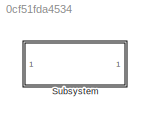
MODEL slx_0cf51fda4534
KIND model
CONFIG AbsTol = auto
CONFIG EnableMultiTasking = off
CONFIG FixedStep = auto
CONFIG MaxStep = auto
CONFIG MinStep = auto
CONFIG RelTol = 1e-3
CONFIG SampleTimeConstraint = Unconstrained
CONFIG SolverName = VariableStepAuto
CONFIG StartTime = 0.0
CONFIG StopTime = 10.0
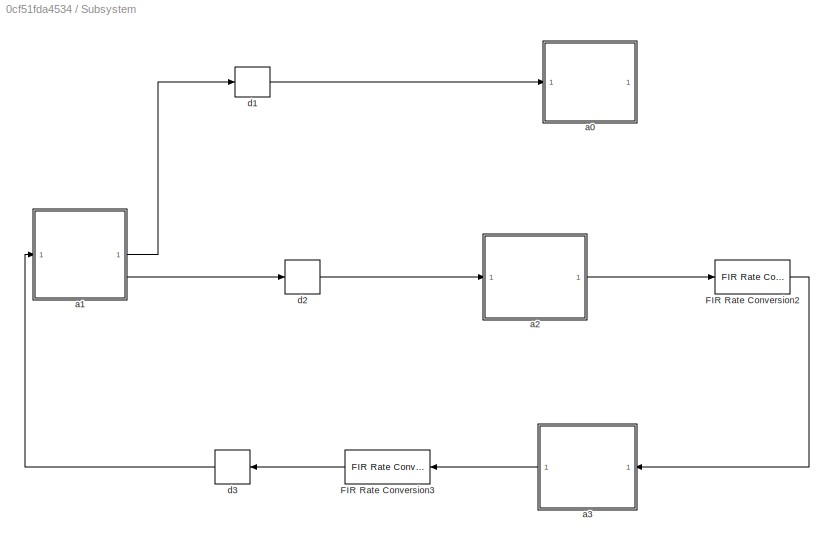
BLOCK [SubSystem] Subsystem
BLOCK [Reference] Subsystem/FIR Rate Conversion2  REF=dspmlti4/FIR Rate
Conversion
  SourceBlock = dspmlti4/FIR Rate\nConversion
  SourceType = FIR Rate Conversion
BLOCK [Reference] Subsystem/FIR Rate Conversion3  REF=dspmlti4/FIR Rate
Conversion
  SourceBlock = dspmlti4/FIR Rate\nConversion
  SourceType = FIR Rate Conversion
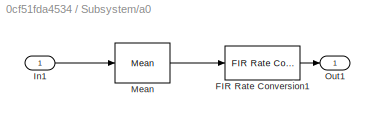
BLOCK [SubSystem] Subsystem/a0
BLOCK [Reference] Subsystem/a0/FIR Rate Conversion1  REF=dspmlti4/FIR Rate
Conversion
  SourceBlock = dspmlti4/FIR Rate\nConversion
  SourceType = FIR Rate Conversion
BLOCK [Inport] Subsystem/a0/In1
BLOCK [Reference] Subsystem/a0/Mean  REF=dspstat3/Mean
  SourceBlock = dspstat3/Mean
  SourceType = Mean
  UserDataPersistent = on
BLOCK [Outport] Subsystem/a0/Out1
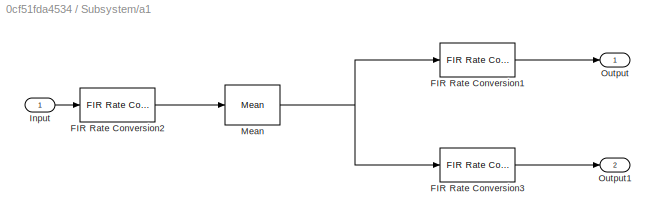
BLOCK [SubSystem] Subsystem/a1
BLOCK [Reference] Subsystem/a1/FIR Rate Conversion1  REF=dspmlti4/FIR Rate
Conversion
  SourceBlock = dspmlti4/FIR Rate\nConversion
  SourceType = FIR Rate Conversion
BLOCK [Reference] Subsystem/a1/FIR Rate Conversion2  REF=dspmlti4/FIR Rate
Conversion
  SourceBlock = dspmlti4/FIR Rate\nConversion
  SourceType = FIR Rate Conversion
BLOCK [Reference] Subsystem/a1/FIR Rate Conversion3  REF=dspmlti4/FIR Rate
Conversion
  SourceBlock = dspmlti4/FIR Rate\nConversion
  SourceType = FIR Rate Conversion
BLOCK [Inport] Subsystem/a1/Input
BLOCK [Reference] Subsystem/a1/Mean  REF=dspstat3/Mean
  SourceBlock = dspstat3/Mean
  SourceType = Mean
  UserDataPersistent = on
BLOCK [Outport] Subsystem/a1/Output
BLOCK [Outport] Subsystem/a1/Output1
  Port = 2
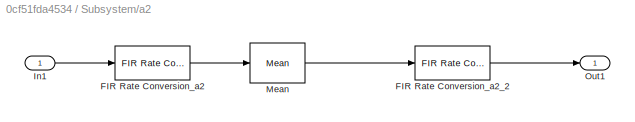
BLOCK [SubSystem] Subsystem/a2
BLOCK [Reference] Subsystem/a2/FIR Rate Conversion_a2  REF=dspmlti4/FIR Rate
Conversion
  SourceBlock = dspmlti4/FIR Rate\nConversion
  SourceType = FIR Rate Conversion
BLOCK [Reference] Subsystem/a2/FIR Rate Conversion_a2_2  REF=dspmlti4/FIR Rate
Conversion
  SourceBlock = dspmlti4/FIR Rate\nConversion
  SourceType = FIR Rate Conversion
BLOCK [Inport] Subsystem/a2/In1
BLOCK [Reference] Subsystem/a2/Mean  REF=dspstat3/Mean
  SourceBlock = dspstat3/Mean
  SourceType = Mean
  UserDataPersistent = on
BLOCK [Outport] Subsystem/a2/Out1
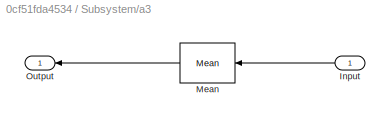
BLOCK [SubSystem] Subsystem/a3
BLOCK [Inport] Subsystem/a3/Input
BLOCK [Reference] Subsystem/a3/Mean  REF=dspstat3/Mean
  SourceBlock = dspstat3/Mean
  SourceType = Mean
  UserDataPersistent = on
BLOCK [Outport] Subsystem/a3/Output
BLOCK [Delay] Subsystem/d1
  DelayLength = 4
  InputPortMap = u0
BLOCK [Delay] Subsystem/d2
  InputPortMap = u0
BLOCK [Delay] Subsystem/d3
  DelayLength = 4
  InputPortMap = u0
LINE Subsystem/FIR Rate Conversion2:1 -> Subsystem/a3:1
LINE Subsystem/FIR Rate Conversion3:1 -> Subsystem/d3:1
LINE Subsystem/a0/FIR Rate Conversion1:1 -> Subsystem/a0/Out1:1
LINE Subsystem/a0/In1:1 -> Subsystem/a0/Mean:1
LINE Subsystem/a0/Mean:1 -> Subsystem/a0/FIR Rate Conversion1:1
LINE Subsystem/a1/FIR Rate Conversion1:1 -> Subsystem/a1/Output:1
LINE Subsystem/a1/FIR Rate Conversion2:1 -> Subsystem/a1/Mean:1
LINE Subsystem/a1/FIR Rate Conversion3:1 -> Subsystem/a1/Output1:1
LINE Subsystem/a1/Input:1 -> Subsystem/a1/FIR Rate Conversion2:1
NET Subsystem/a1/Mean:1 -> Subsystem/a1/FIR Rate Conversion1:1, Subsystem/a1/FIR Rate Conversion3:1
LINE Subsystem/a1:1 -> Subsystem/d1:1
LINE Subsystem/a1:2 -> Subsystem/d2:1
LINE Subsystem/a2/FIR Rate Conversion_a2:1 -> Subsystem/a2/Mean:1
LINE Subsystem/a2/FIR Rate Conversion_a2_2:1 -> Subsystem/a2/Out1:1
LINE Subsystem/a2/In1:1 -> Subsystem/a2/FIR Rate Conversion_a2:1
LINE Subsystem/a2/Mean:1 -> Subsystem/a2/FIR Rate Conversion_a2_2:1
LINE Subsystem/a2:1 -> Subsystem/FIR Rate Conversion2:1
LINE Subsystem/a3/Input:1 -> Subsystem/a3/Mean:1
LINE Subsystem/a3/Mean:1 -> Subsystem/a3/Output:1
LINE Subsystem/a3:1 -> Subsystem/FIR Rate Conversion3:1
LINE Subsystem/d1:1 -> Subsystem/a0:1
LINE Subsystem/d2:1 -> Subsystem/a2:1
LINE Subsystem/d3:1 -> Subsystem/a1:1
note: NET lines group one-source signal fan-out (src -> all destinations, sorted); 1:1 wires keep LINE
